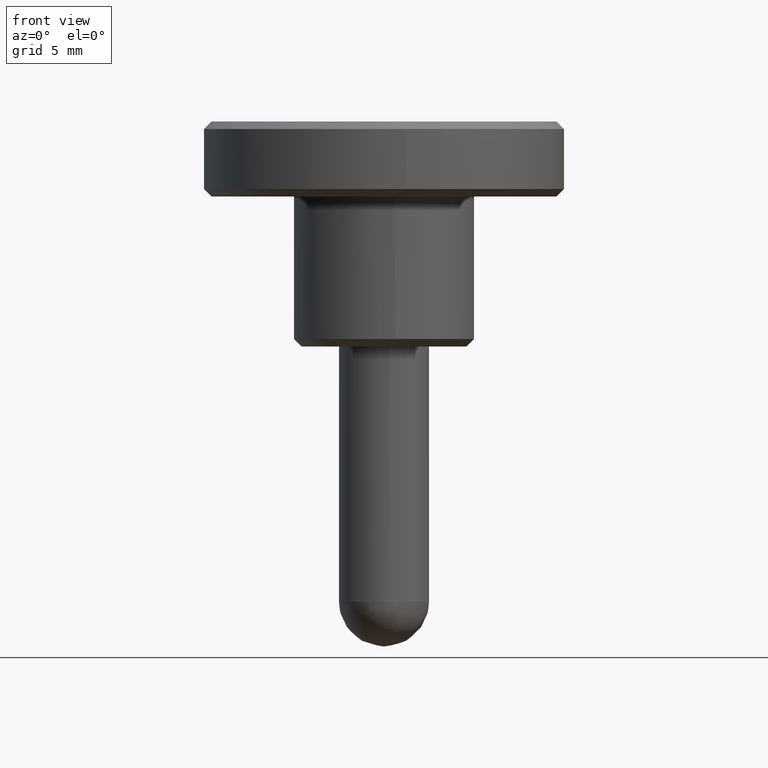
[diagram: clean part render]
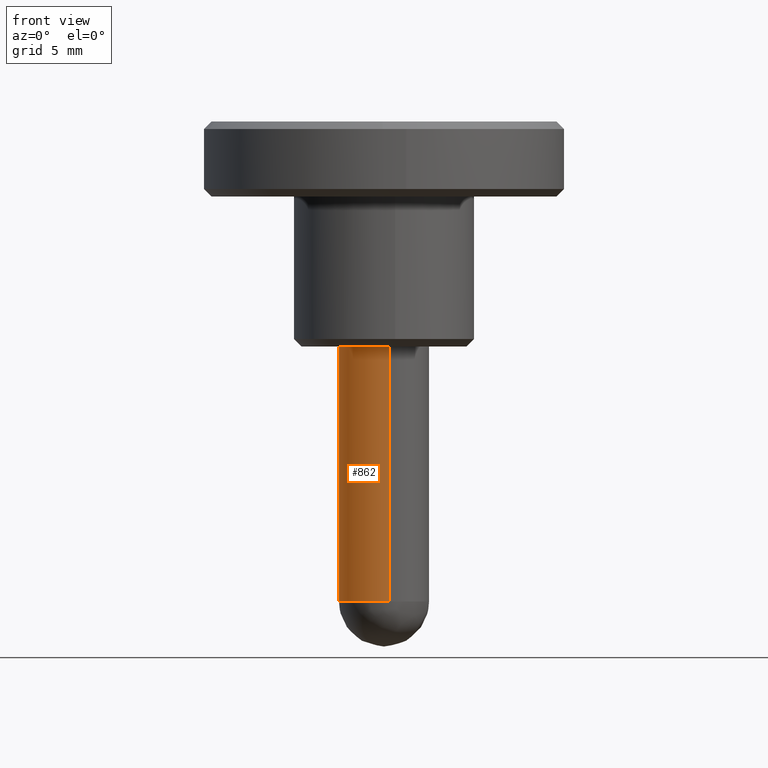
[diagram: same view with one face highlighted and labeled with its STEP entity id]
A machine part, front view. The second image highlights one B-rep face of the part: STEP entity #862.
In plain terms, the highlighted face is a freeform B-spline surface patch.
Its self-contained STEP definition (entity closure, byte-faithful):
#695=CARTESIAN_POINT('',(0.372382066943663,-2.976798884072443,-17.0));
#696=VERTEX_POINT('',#695);
#712=CARTESIAN_POINT('',(-0.026179606528921,2.999885769192218,-17.0));
#713=VERTEX_POINT('',#712);
#729=CARTESIAN_POINT('',(-0.026179606523298,2.999885769192267,-4.163336E-016));
#730=VERTEX_POINT('',#729);
#731=CARTESIAN_POINT('',(-0.026179606528921,2.999885769192218,-17.0));
#732=CARTESIAN_POINT('',(-0.026179606523298,2.999885769192267,-4.163336E-016));
#733=QUASI_UNIFORM_CURVE('',1,(#731,#732),.UNSPECIFIED.,.F.,.U.);
#734=EDGE_CURVE('',#713,#730,#733,.T.);
#753=CARTESIAN_POINT('',(0.372384006262696,-2.976798641473713,-4.350921E-016));
#754=VERTEX_POINT('',#753);
#768=CARTESIAN_POINT('',(0.372382066943663,-2.976798884072443,-17.0));
#769=CARTESIAN_POINT('',(0.372384006262696,-2.976798641473713,-4.350921E-016));
#770=QUASI_UNIFORM_CURVE('',1,(#768,#769),.UNSPECIFIED.,.F.,.U.);
#771=EDGE_CURVE('',#696,#754,#770,.T.);
#776=CARTESIAN_POINT('',(-0.026179606495122,2.999885769192513,-17.425000000000001));
#777=CARTESIAN_POINT('',(-3.026065375687634,2.973706162697392,-17.424999999999997));
#778=CARTESIAN_POINT('',(-2.999885769192513,-0.026179606495122,-17.425000000000001));
#779=CARTESIAN_POINT('',(-2.973706162697392,-3.026065375687634,-17.424999999999997));
#780=CARTESIAN_POINT('',(0.026179606495122,-2.999885769192513,-17.425000000000001));
#781=CARTESIAN_POINT('',(0.199950476874521,-2.998369293780826,-17.425000000000001));
#782=CARTESIAN_POINT('',(0.372384006239488,-2.976798641476615,-17.425000000000004));
#783=CARTESIAN_POINT('',(-0.026179606495122,2.999885769192513,0.435625000000002));
#784=CARTESIAN_POINT('',(-3.026065375687634,2.973706162697392,0.435625000000002));
#785=CARTESIAN_POINT('',(-2.999885769192513,-0.026179606495122,0.435625000000002));
#786=CARTESIAN_POINT('',(-2.973706162697392,-3.026065375687634,0.435625000000002));
#787=CARTESIAN_POINT('',(0.026179606495122,-2.999885769192513,0.435625000000002));
#788=CARTESIAN_POINT('',(0.199950476874521,-2.998369293780826,0.435625000000002));
#789=CARTESIAN_POINT('',(0.372384006239488,-2.976798641476615,0.435625000000002));
#797=(BOUNDED_SURFACE()B_SPLINE_SURFACE(2,1,((#776,#783),(#777,#784),(#778,#785),(#779,#786),(#780,#787),(#781,#788),(#782,#789)),.UNSPECIFIED.,.F.,.F.,.U.)B_SPLINE_SURFACE_WITH_KNOTS((3,2,2,3),(2,2),(0.0,4.970562748477139,9.941125496954278,10.338770516832451),(0.0,17.860625000000010),.UNSPECIFIED.)GEOMETRIC_REPRESENTATION_ITEM()RATIONAL_B_SPLINE_SURFACE(((1.0,1.0),(0.707106781186548,0.707106781186548),(1.0,1.0),(0.707106781186548,0.707106781186548),(1.0,1.0),(0.976568542494924,0.976568542494924),(0.956886118190660,0.956886118190660)))REPRESENTATION_ITEM('')SURFACE());
#798=CARTESIAN_POINT('',(-3.0,0.0,-17.0));
#799=VERTEX_POINT('',#798);
#800=CARTESIAN_POINT('',(-3.0,0.0,-17.0));
#801=CARTESIAN_POINT('',(-3.0,-3.0,-17.000000000000004));
#802=CARTESIAN_POINT('',(0.0,-3.0,-17.0));
#803=CARTESIAN_POINT('',(0.186913801601756,-3.000000000000001,-17.000000000000004));
#804=CARTESIAN_POINT('',(0.372382066943663,-2.976798884072443,-16.999999999999996));
#812=(BOUNDED_CURVE()B_SPLINE_CURVE(2,(#800,#801,#802,#803,#804),.UNSPECIFIED.,.F.,.U.)B_SPLINE_CURVE_WITH_KNOTS((3,2,3),(0.500000000000000,0.750000000000000,0.771473819102890),.UNSPECIFIED.)CURVE()GEOMETRIC_REPRESENTATION_ITEM()RATIONAL_B_SPLINE_CURVE((1.0,0.707106781186548,1.0,0.974841856010947,0.954005643485778))REPRESENTATION_ITEM(''));
#813=EDGE_CURVE('',#799,#696,#812,.T.);
#814=ORIENTED_EDGE('',*,*,#813,.T.);
#815=ORIENTED_EDGE('',*,*,#771,.T.);
#816=CARTESIAN_POINT('',(-3.0,0.0,0.0));
#817=VERTEX_POINT('',#816);
#818=CARTESIAN_POINT('',(0.372384006262696,-2.976798641473713,-4.350921E-016));
#819=CARTESIAN_POINT('',(0.186914782623962,-3.0,0.0));
#820=CARTESIAN_POINT('',(0.0,-3.0,0.0));
#821=CARTESIAN_POINT('',(-3.0,-3.0,0.0));
#822=CARTESIAN_POINT('',(-3.0,0.0,0.0));
#830=(BOUNDED_CURVE()B_SPLINE_CURVE(2,(#818,#819,#820,#821,#822),.UNSPECIFIED.,.F.,.U.)B_SPLINE_CURVE_WITH_KNOTS((3,2,3),(0.728526071026669,0.750000000000000,1.0),.UNSPECIFIED.)CURVE()GEOMETRIC_REPRESENTATION_ITEM()RATIONAL_B_SPLINE_CURVE((0.954005430269616,0.974841727289719,1.0,0.707106781186548,1.0))REPRESENTATION_ITEM(''));
#831=EDGE_CURVE('',#754,#817,#830,.T.);
#832=ORIENTED_EDGE('',*,*,#831,.T.);
#833=CARTESIAN_POINT('',(-3.0,0.0,0.0));
#834=CARTESIAN_POINT('',(-3.000000000000000,2.973933631729068,0.0));
#835=CARTESIAN_POINT('',(-0.026179606523298,2.999885769192268,-4.163336E-016));
#843=(BOUNDED_CURVE()B_SPLINE_CURVE(2,(#833,#834,#835),.UNSPECIFIED.,.F.,.U.)B_SPLINE_CURVE_WITH_KNOTS((3,3),(0.0,0.248460105661704),.UNSPECIFIED.)CURVE()GEOMETRIC_REPRESENTATION_ITEM()RATIONAL_B_SPLINE_CURVE((1.0,0.708910879624052,0.996414028092748))REPRESENTATION_ITEM(''));
#844=EDGE_CURVE('',#817,#730,#843,.T.);
#845=ORIENTED_EDGE('',*,*,#844,.T.);
#846=ORIENTED_EDGE('',*,*,#734,.F.);
#847=CARTESIAN_POINT('',(-0.026179606528921,2.999885769192219,-16.999999999999996));
#848=CARTESIAN_POINT('',(-3.000000000000000,2.973933631717919,-17.000000000000007));
#849=CARTESIAN_POINT('',(-3.0,0.0,-17.0));
#857=(BOUNDED_CURVE()B_SPLINE_CURVE(2,(#847,#848,#849),.UNSPECIFIED.,.F.,.U.)B_SPLINE_CURVE_WITH_KNOTS((3,3),(0.251539894338956,0.500000000000000),.UNSPECIFIED.)CURVE()GEOMETRIC_REPRESENTATION_ITEM()RATIONAL_B_SPLINE_CURVE((0.996414028091220,0.708910879624826,1.0))REPRESENTATION_ITEM(''));
#858=EDGE_CURVE('',#713,#799,#857,.T.);
#859=ORIENTED_EDGE('',*,*,#858,.T.);
#860=EDGE_LOOP('',(#814,#815,#832,#845,#846,#859));
#861=FACE_OUTER_BOUND('',#860,.T.);
#862=ADVANCED_FACE('',(#861),#797,.T.);